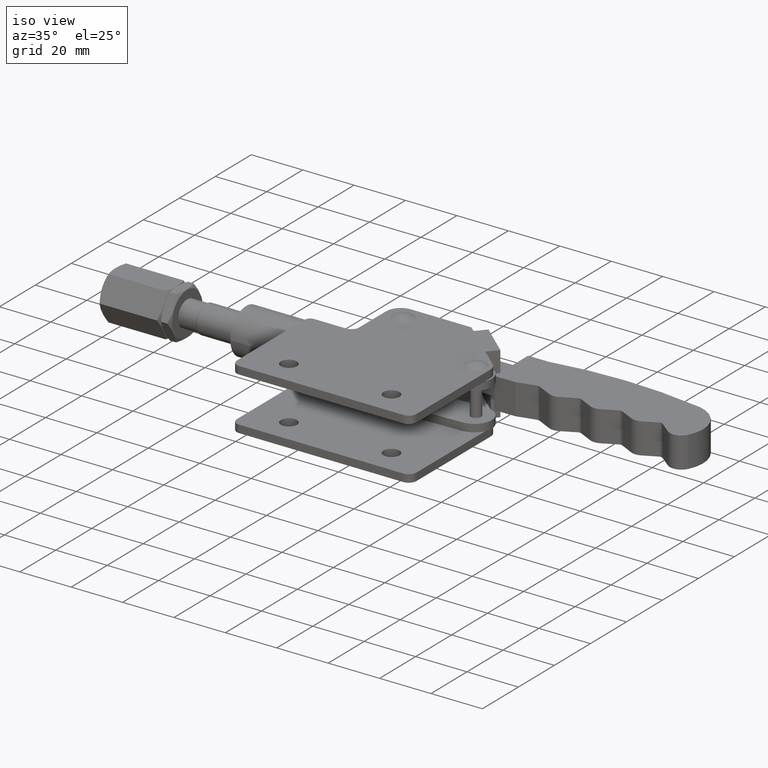
[diagram: clean part render]
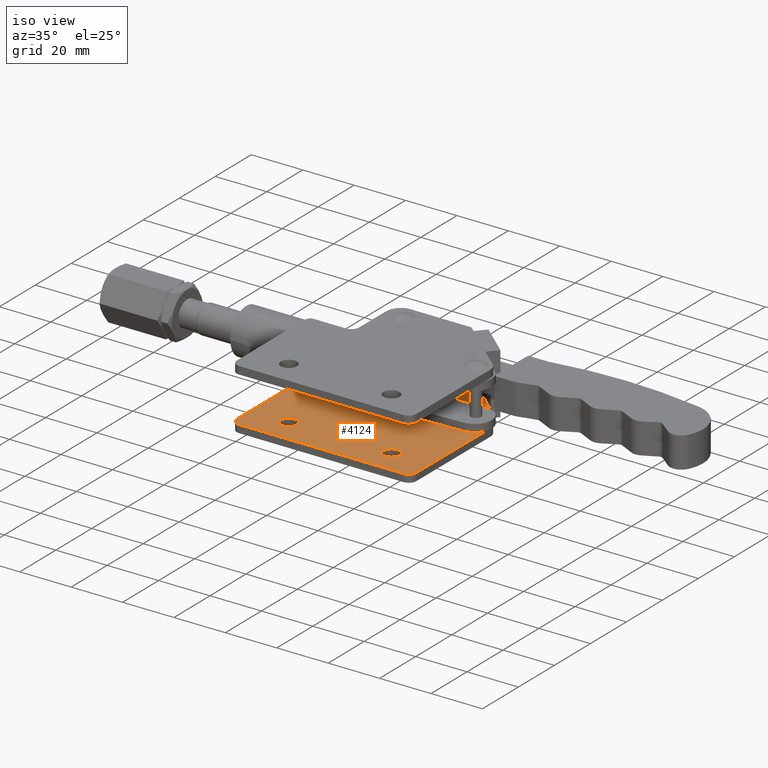
[diagram: same view with one face highlighted and labeled with its STEP entity id]
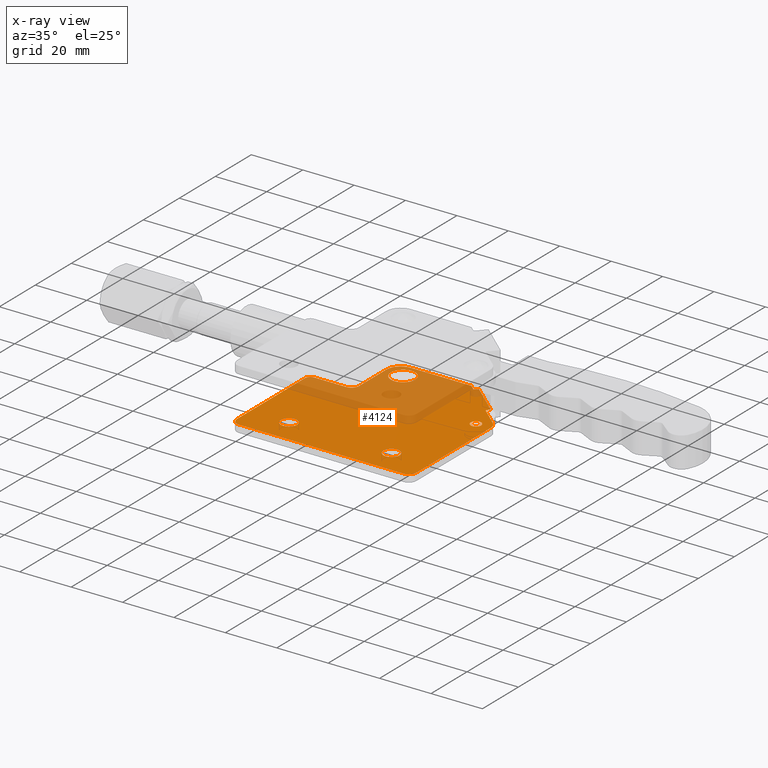
[diagram: x-ray of the same camera — body ghosted, the highlighted face saturated]
A machine part, iso view. The second image highlights one B-rep face of the part: STEP entity #4124.
The next image is the same camera in x-ray: the body ghosted, the highlighted face saturated — about 32% of this face is hidden behind the body in this view.
In plain terms, the highlighted planar face has unit normal (-0, -0, -1).
Its self-contained STEP definition (entity closure, byte-faithful):
#21 = CARTESIAN_POINT ( 'NONE',  ( 51.84999999999999400, -11.50000000000001200, -20.59999999999999400 ) ) ;
#50 = ORIENTED_EDGE ( 'NONE', *, *, #1729, .F. ) ;
#127 = CARTESIAN_POINT ( 'NONE',  ( 65.00000000000001400, 21.90075065746413000, -20.60000000000000100 ) ) ;
#140 = VERTEX_POINT ( 'NONE', #1591 ) ;
#147 = ORIENTED_EDGE ( 'NONE', *, *, #6538, .T. ) ;
#149 = CARTESIAN_POINT ( 'NONE',  ( 22.99999999999999300, 44.49999999999999300, -20.60000000000000100 ) ) ;
#206 = ORIENTED_EDGE ( 'NONE', *, *, #1552, .F. ) ;
#239 = VERTEX_POINT ( 'NONE', #1182 ) ;
#311 = AXIS2_PLACEMENT_3D ( 'NONE', #3776, #6718, #3019 ) ;
#325 = ORIENTED_EDGE ( 'NONE', *, *, #2093, .T. ) ;
#329 = VERTEX_POINT ( 'NONE', #7677 ) ;
#334 = EDGE_CURVE ( 'NONE', #1804, #3253, #7029, .T. ) ;
#335 = EDGE_CURVE ( 'NONE', #4660, #5764, #2741, .T. ) ;
#376 = DIRECTION ( 'NONE',  ( 1.000000000000000000, 0.0000000000000000000, 0.0000000000000000000 ) ) ;
#396 = DIRECTION ( 'NONE',  ( 9.227252531791530300E-017, -1.000000000000000000, 1.110223024625156200E-016 ) ) ;
#398 = DIRECTION ( 'NONE',  ( -0.0000000000000000000, 1.110223024625156000E-016, 1.000000000000000000 ) ) ;
#432 = VECTOR ( 'NONE', #793, 1000.000000000000000 ) ;
#451 = CARTESIAN_POINT ( 'NONE',  ( 62.05773196407486800, 33.41870890161623500, -20.60000000000000100 ) ) ;
#475 = DIRECTION ( 'NONE',  ( -0.0000000000000000000, 1.110223024625156000E-016, 1.000000000000000000 ) ) ;
#548 = ORIENTED_EDGE ( 'NONE', *, *, #7209, .T. ) ;
#629 = AXIS2_PLACEMENT_3D ( 'NONE', #6085, #630, #4109 ) ;
#630 = DIRECTION ( 'NONE',  ( 0.0000000000000000000, -1.110223024625156000E-016, -1.000000000000000000 ) ) ;
#669 = AXIS2_PLACEMENT_3D ( 'NONE', #3328, #2948, #5654 ) ;
#697 = AXIS2_PLACEMENT_3D ( 'NONE', #2839, #1976, #1230 ) ;
#739 = DIRECTION ( 'NONE',  ( 0.0000000000000000000, 1.000000000000000000, 0.0000000000000000000 ) ) ;
#766 = DIRECTION ( 'NONE',  ( 1.000000000000000000, 0.0000000000000000000, 0.0000000000000000000 ) ) ;
#785 = DIRECTION ( 'NONE',  ( 0.0000000000000000000, -1.110223024625156000E-016, -1.000000000000000000 ) ) ;
#793 = DIRECTION ( 'NONE',  ( -0.7535633923016373800, 0.6573752457940963400, -7.298331336992269900E-017 ) ) ;
#808 = CARTESIAN_POINT ( 'NONE',  ( 70.00000000000002800, 21.90075065746412300, -20.60000000000000100 ) ) ;
#827 = VECTOR ( 'NONE', #4089, 1000.000000000000000 ) ;
#845 = AXIS2_PLACEMENT_3D ( 'NONE', #5359, #5256, #7810 ) ;
#881 = VERTEX_POINT ( 'NONE', #451 ) ;
#933 = CARTESIAN_POINT ( 'NONE',  ( 14.99999999999999600, -11.50000000000001100, -20.59999999999999400 ) ) ;
#938 = CIRCLE ( 'NONE', #3466, 2.000000000000001800 ) ;
#946 = DIRECTION ( 'NONE',  ( 0.6563266565067466000, 0.7544768518375332100, -8.376375724567318500E-017 ) ) ;
#952 = VECTOR ( 'NONE', #2829, 1000.000000000000000 ) ;
#957 = VECTOR ( 'NONE', #4771, 1000.000000000000000 ) ;
#995 = ORIENTED_EDGE ( 'NONE', *, *, #3375, .T. ) ;
#1031 = CIRCLE ( 'NONE', #629, 3.149999999999998100 ) ;
#1036 = CARTESIAN_POINT ( 'NONE',  ( 22.99999999999999300, 44.49999999999999300, -20.60000000000000100 ) ) ;
#1105 = VERTEX_POINT ( 'NONE', #1317 ) ;
#1155 = ORIENTED_EDGE ( 'NONE', *, *, #1370, .T. ) ;
#1182 = CARTESIAN_POINT ( 'NONE',  ( 11.84999999999999600, -11.50000000000001100, -20.59999999999999400 ) ) ;
#1230 = DIRECTION ( 'NONE',  ( 1.000000000000000000, 0.0000000000000000000, 0.0000000000000000000 ) ) ;
#1317 = CARTESIAN_POINT ( 'NONE',  ( 18.14999999999999500, -11.50000000000001100, -20.59999999999999400 ) ) ;
#1352 = VERTEX_POINT ( 'NONE', #7855 ) ;
#1363 = AXIS2_PLACEMENT_3D ( 'NONE', #2137, #7042, #6399 ) ;
#1370 = EDGE_CURVE ( 'NONE', #5854, #1510, #7167, .T. ) ;
#1455 = VERTEX_POINT ( 'NONE', #3716 ) ;
#1497 = VECTOR ( 'NONE', #3975, 1000.000000000000100 ) ;
#1510 = VERTEX_POINT ( 'NONE', #1869 ) ;
#1530 = AXIS2_PLACEMENT_3D ( 'NONE', #5467, #7174, #766 ) ;
#1552 = EDGE_CURVE ( 'NONE', #1773, #2255, #2884, .T. ) ;
#1591 = CARTESIAN_POINT ( 'NONE',  ( 70.00000000000001400, 21.90075065746411900, -20.60000000000000100 ) ) ;
#1600 = CARTESIAN_POINT ( 'NONE',  ( 17.49999999999998900, 23.80000000000000100, -20.60000000000000100 ) ) ;
#1642 = VERTEX_POINT ( 'NONE', #4127 ) ;
#1708 = EDGE_CURVE ( 'NONE', #3002, #1352, #5382, .T. ) ;
#1712 = AXIS2_PLACEMENT_3D ( 'NONE', #7714, #785, #3318 ) ;
#1722 = ORIENTED_EDGE ( 'NONE', *, *, #7622, .T. ) ;
#1729 = EDGE_CURVE ( 'NONE', #329, #881, #3259, .T. ) ;
#1773 = VERTEX_POINT ( 'NONE', #5936 ) ;
#1804 = VERTEX_POINT ( 'NONE', #1600 ) ;
#1861 = ORIENTED_EDGE ( 'NONE', *, *, #2289, .T. ) ;
#1869 = CARTESIAN_POINT ( 'NONE',  ( 58.14999999999999100, -11.50000000000001200, -20.59999999999999400 ) ) ;
#1913 = LINE ( 'NONE', #5606, #952 ) ;
#1959 = DIRECTION ( 'NONE',  ( -0.0000000000000000000, 1.110223024625156000E-016, 1.000000000000000000 ) ) ;
#1976 = DIRECTION ( 'NONE',  ( 0.0000000000000000000, -1.110223024625156000E-016, -1.000000000000000000 ) ) ;
#2005 = LINE ( 'NONE', #7287, #957 ) ;
#2008 = CARTESIAN_POINT ( 'NONE',  ( 61.28844937279576000, 31.77368448339173300, -20.60000000000000100 ) ) ;
#2029 = VERTEX_POINT ( 'NONE', #4955 ) ;
#2038 = CARTESIAN_POINT ( 'NONE',  ( 61.28844937279576000, 31.77368448339173300, -20.60000000000000100 ) ) ;
#2065 = FACE_OUTER_BOUND ( 'NONE', #5744, .T. ) ;
#2070 = VECTOR ( 'NONE', #3468, 1000.000000000000000 ) ;
#2083 = CARTESIAN_POINT ( 'NONE',  ( 3.000000000000002700, -22.00000000000001100, -20.59999999999999400 ) ) ;
#2093 = EDGE_CURVE ( 'NONE', #1352, #881, #7856, .T. ) ;
#2137 = CARTESIAN_POINT ( 'NONE',  ( 22.99999999999999300, 38.99999999999998600, -20.60000000000000100 ) ) ;
#2214 = VERTEX_POINT ( 'NONE', #6562 ) ;
#2222 = EDGE_CURVE ( 'NONE', #1642, #4660, #5662, .T. ) ;
#2240 = CIRCLE ( 'NONE', #6245, 3.149999999999999900 ) ;
#2255 = VERTEX_POINT ( 'NONE', #5713 ) ;
#2289 = EDGE_CURVE ( 'NONE', #140, #7817, #4452, .T. ) ;
#2323 = EDGE_LOOP ( 'NONE', ( #5060, #3372 ) ) ;
#2427 = DIRECTION ( 'NONE',  ( 0.0000000000000000000, -1.110223024625156000E-016, -1.000000000000000000 ) ) ;
#2561 = AXIS2_PLACEMENT_3D ( 'NONE', #933, #2902, #5917 ) ;
#2571 = CARTESIAN_POINT ( 'NONE',  ( 2.000000000000000000, 20.80000000000000100, -20.59999999999999800 ) ) ;
#2741 = LINE ( 'NONE', #1036, #5595 ) ;
#2783 = ORIENTED_EDGE ( 'NONE', *, *, #335, .T. ) ;
#2816 = EDGE_CURVE ( 'NONE', #3253, #5177, #1913, .T. ) ;
#2829 = DIRECTION ( 'NONE',  ( -1.000000000000000000, 0.0000000000000000000, 0.0000000000000000000 ) ) ;
#2839 = CARTESIAN_POINT ( 'NONE',  ( 14.49999999999998800, 23.80000000000000100, -20.60000000000000100 ) ) ;
#2841 = CIRCLE ( 'NONE', #845, 4.750000000000032000 ) ;
#2884 = CIRCLE ( 'NONE', #7682, 4.750000000000032000 ) ;
#2902 = DIRECTION ( 'NONE',  ( 0.0000000000000000000, -1.110223024625156000E-016, -1.000000000000000000 ) ) ;
#2948 = DIRECTION ( 'NONE',  ( 0.0000000000000000000, 0.0000000000000000000, 1.000000000000000000 ) ) ;
#2958 = VECTOR ( 'NONE', #396, 1000.000000000000000 ) ;
#2975 = CARTESIAN_POINT ( 'NONE',  ( 64.39634752937097100, 21.89999999999998400, -20.59999999999999800 ) ) ;
#3002 = VERTEX_POINT ( 'NONE', #2008 ) ;
#3019 = DIRECTION ( 'NONE',  ( 1.000000000000000000, 0.0000000000000000000, 0.0000000000000000000 ) ) ;
#3048 = CARTESIAN_POINT ( 'NONE',  ( 17.49999999999998900, 38.99999999999998600, -20.60000000000000100 ) ) ;
#3101 = ORIENTED_EDGE ( 'NONE', *, *, #2816, .T. ) ;
#3168 = ORIENTED_EDGE ( 'NONE', *, *, #7820, .T. ) ;
#3175 = DIRECTION ( 'NONE',  ( 0.0000000000000000000, 0.0000000000000000000, 1.000000000000000000 ) ) ;
#3190 = LINE ( 'NONE', #808, #827 ) ;
#3240 = EDGE_CURVE ( 'NONE', #239, #1105, #6817, .T. ) ;
#3253 = VERTEX_POINT ( 'NONE', #4251 ) ;
#3256 = CARTESIAN_POINT ( 'NONE',  ( 68.28687622897049900, 25.66856761897230400, -20.60000000000000100 ) ) ;
#3259 = LINE ( 'NONE', #3867, #3738 ) ;
#3311 = CARTESIAN_POINT ( 'NONE',  ( 66.99999999999998600, -22.00000000000001800, -20.59999999999999400 ) ) ;
#3312 = DIRECTION ( 'NONE',  ( 0.0000000000000000000, -1.110223024625156000E-016, -1.000000000000000000 ) ) ;
#3318 = DIRECTION ( 'NONE',  ( 0.0000000000000000000, 1.000000000000000000, 0.0000000000000000000 ) ) ;
#3328 = CARTESIAN_POINT ( 'NONE',  ( 64.39634752937097100, 21.89999999999998400, -20.59999999999999800 ) ) ;
#3333 = LINE ( 'NONE', #6613, #2958 ) ;
#3370 = DIRECTION ( 'NONE',  ( 0.7535633923016399300, -0.6573752457940934500, 7.298331336992237800E-017 ) ) ;
#3372 = ORIENTED_EDGE ( 'NONE', *, *, #5683, .F. ) ;
#3375 = EDGE_CURVE ( 'NONE', #1105, #239, #2240, .T. ) ;
#3466 = AXIS2_PLACEMENT_3D ( 'NONE', #2975, #3175, #6815 ) ;
#3468 = DIRECTION ( 'NONE',  ( 0.0000000000000000000, -1.000000000000000000, 1.110223024625156000E-016 ) ) ;
#3473 = CIRCLE ( 'NONE', #5704, 2.999999999999997300 ) ;
#3490 = FACE_BOUND ( 'NONE', #2323, .T. ) ;
#3510 = ORIENTED_EDGE ( 'NONE', *, *, #1708, .T. ) ;
#3521 = FACE_BOUND ( 'NONE', #6035, .T. ) ;
#3676 = CARTESIAN_POINT ( 'NONE',  ( 46.69999999999998900, 44.50000000000000000, -20.60000000000000100 ) ) ;
#3708 = FACE_BOUND ( 'NONE', #5396, .T. ) ;
#3716 = CARTESIAN_POINT ( 'NONE',  ( 17.49999999999998900, 38.99999999999998600, -20.60000000000000100 ) ) ;
#3738 = VECTOR ( 'NONE', #3370, 1000.000000000000100 ) ;
#3762 = DIRECTION ( 'NONE',  ( -1.000000000000000000, -2.927803334981952900E-016, 3.250514674071282500E-032 ) ) ;
#3776 = CARTESIAN_POINT ( 'NONE',  ( 66.99999999999998600, -19.00000000000001400, -20.59999999999999400 ) ) ;
#3814 = CARTESIAN_POINT ( 'NONE',  ( 14.99999999999999600, -11.50000000000001100, -20.59999999999999400 ) ) ;
#3867 = CARTESIAN_POINT ( 'NONE',  ( 49.62522958480004600, 44.26427198350752700, -20.60000000000000100 ) ) ;
#3975 = DIRECTION ( 'NONE',  ( -0.7535633923016400400, 0.6573752457940932300, -7.298331336992235300E-017 ) ) ;
#3976 = CARTESIAN_POINT ( 'NONE',  ( 66.39634752937097100, 21.89999999999998400, -20.59999999999999800 ) ) ;
#4028 = VERTEX_POINT ( 'NONE', #6256 ) ;
#4089 = DIRECTION ( 'NONE',  ( 1.901001663121262300E-015, 1.000000000000000000, -1.110223024625156200E-016 ) ) ;
#4109 = DIRECTION ( 'NONE',  ( 0.0000000000000000000, 1.000000000000000000, 0.0000000000000000000 ) ) ;
#4124 = ADVANCED_FACE ( 'NONE', ( #3521, #3708, #5143, #2065, #3490 ), #5526, .F. ) ;
#4127 = CARTESIAN_POINT ( 'NONE',  ( 48.46049205446850300, 42.96422489620947300, -20.60000000000000100 ) ) ;
#4135 = CARTESIAN_POINT ( 'NONE',  ( 2.000000000000000000, 18.79999999999999700, -20.59999999999999800 ) ) ;
#4175 = AXIS2_PLACEMENT_3D ( 'NONE', #5127, #6241, #6397 ) ;
#4243 = VERTEX_POINT ( 'NONE', #3976 ) ;
#4251 = CARTESIAN_POINT ( 'NONE',  ( 14.49999999999998800, 20.80000000000000100, -20.59999999999999800 ) ) ;
#4287 = EDGE_CURVE ( 'NONE', #2255, #1773, #2841, .T. ) ;
#4401 = ORIENTED_EDGE ( 'NONE', *, *, #4581, .T. ) ;
#4409 = AXIS2_PLACEMENT_3D ( 'NONE', #127, #1959, #5601 ) ;
#4452 = CIRCLE ( 'NONE', #4409, 5.000000000000004400 ) ;
#4456 = ORIENTED_EDGE ( 'NONE', *, *, #6852, .T. ) ;
#4581 = EDGE_CURVE ( 'NONE', #329, #5176, #2005, .T. ) ;
#4660 = VERTEX_POINT ( 'NONE', #7683 ) ;
#4664 = DIRECTION ( 'NONE',  ( 1.000000000000000000, -1.084202172485504700E-016, 1.203706215242022100E-032 ) ) ;
#4712 = CARTESIAN_POINT ( 'NONE',  ( 48.80622502360355200, 43.32542942836960300, -20.60000000000000100 ) ) ;
#4771 = DIRECTION ( 'NONE',  ( -0.6563266565067464900, -0.7544768518375332100, 8.376375724567318500E-017 ) ) ;
#4786 = CARTESIAN_POINT ( 'NONE',  ( 62.39634752937097800, 21.89999999999998400, -20.59999999999999800 ) ) ;
#4955 = CARTESIAN_POINT ( 'NONE',  ( 69.99999999999998600, -19.00000000000001400, -20.59999999999999400 ) ) ;
#4979 = CARTESIAN_POINT ( 'NONE',  ( 24.63999999999999300, 37.99999999999998600, -20.60000000000000100 ) ) ;
#5060 = ORIENTED_EDGE ( 'NONE', *, *, #6554, .F. ) ;
#5127 = CARTESIAN_POINT ( 'NONE',  ( 61.61716502681409900, 32.15044172460058300, -20.60000000000000100 ) ) ;
#5130 = ORIENTED_EDGE ( 'NONE', *, *, #4287, .F. ) ;
#5143 = FACE_BOUND ( 'NONE', #5199, .T. ) ;
#5176 = VERTEX_POINT ( 'NONE', #7319 ) ;
#5177 = VERTEX_POINT ( 'NONE', #2571 ) ;
#5199 = EDGE_LOOP ( 'NONE', ( #995, #6988 ) ) ;
#5256 = DIRECTION ( 'NONE',  ( -0.0000000000000000000, 1.110223024625156000E-016, 1.000000000000000000 ) ) ;
#5359 = CARTESIAN_POINT ( 'NONE',  ( 24.63999999999999300, 37.99999999999998600, -20.60000000000000100 ) ) ;
#5382 = CIRCLE ( 'NONE', #4175, 0.5000000000000143200 ) ;
#5396 = EDGE_LOOP ( 'NONE', ( #4456, #1155 ) ) ;
#5430 = EDGE_CURVE ( 'NONE', #7817, #3002, #7422, .T. ) ;
#5467 = CARTESIAN_POINT ( 'NONE',  ( 48.80622502360355200, 43.32542942836960300, -20.60000000000000100 ) ) ;
#5503 = DIRECTION ( 'NONE',  ( -0.0000000000000000000, 1.110223024625156000E-016, 1.000000000000000000 ) ) ;
#5526 = PLANE ( 'NONE',  #1530 ) ;
#5529 = LINE ( 'NONE', #2083, #6740 ) ;
#5543 = ORIENTED_EDGE ( 'NONE', *, *, #6705, .T. ) ;
#5575 = EDGE_CURVE ( 'NONE', #2029, #140, #3190, .T. ) ;
#5595 = VECTOR ( 'NONE', #3762, 1000.000000000000000 ) ;
#5601 = DIRECTION ( 'NONE',  ( 1.000000000000000000, 0.0000000000000000000, 0.0000000000000000000 ) ) ;
#5606 = CARTESIAN_POINT ( 'NONE',  ( 2.000000000000000000, 20.80000000000000100, -20.59999999999999800 ) ) ;
#5654 = DIRECTION ( 'NONE',  ( 1.000000000000000000, 0.0000000000000000000, 0.0000000000000000000 ) ) ;
#5662 = LINE ( 'NONE', #3676, #432 ) ;
#5683 = EDGE_CURVE ( 'NONE', #4243, #7178, #938, .T. ) ;
#5704 = AXIS2_PLACEMENT_3D ( 'NONE', #7360, #398, #7059 ) ;
#5713 = CARTESIAN_POINT ( 'NONE',  ( 29.38882554625753200, 38.10562164177891700, -20.60000000000000100 ) ) ;
#5720 = CIRCLE ( 'NONE', #311, 3.000000000000002700 ) ;
#5741 = ORIENTED_EDGE ( 'NONE', *, *, #5430, .T. ) ;
#5744 = EDGE_LOOP ( 'NONE', ( #6896, #1861, #5741, #3510, #325, #50, #4401, #3168, #6646, #2783, #1722, #5958, #7264, #3101, #147, #548, #7720, #5543, #6647 ) ) ;
#5764 = VERTEX_POINT ( 'NONE', #149 ) ;
#5854 = VERTEX_POINT ( 'NONE', #21 ) ;
#5883 = AXIS2_PLACEMENT_3D ( 'NONE', #4712, #2427, #7252 ) ;
#5916 = CIRCLE ( 'NONE', #1363, 5.500000000000005300 ) ;
#5917 = DIRECTION ( 'NONE',  ( 0.0000000000000000000, 1.000000000000000000, 0.0000000000000000000 ) ) ;
#5936 = CARTESIAN_POINT ( 'NONE',  ( 19.89117445374245100, 37.89437835822105400, -20.60000000000000100 ) ) ;
#5958 = ORIENTED_EDGE ( 'NONE', *, *, #6412, .T. ) ;
#6035 = EDGE_LOOP ( 'NONE', ( #206, #5130 ) ) ;
#6085 = CARTESIAN_POINT ( 'NONE',  ( 54.99999999999999300, -11.50000000000001200, -20.59999999999999400 ) ) ;
#6166 = CIRCLE ( 'NONE', #669, 2.000000000000001800 ) ;
#6241 = DIRECTION ( 'NONE',  ( 0.0000000000000000000, -1.110223024625156000E-016, -1.000000000000000000 ) ) ;
#6245 = AXIS2_PLACEMENT_3D ( 'NONE', #3814, #3312, #6622 ) ;
#6256 = CARTESIAN_POINT ( 'NONE',  ( -1.734723475976807100E-015, 18.79999999999999700, -20.59999999999999800 ) ) ;
#6375 = CARTESIAN_POINT ( 'NONE',  ( 61.23992695308214000, 32.47860545770803500, -20.60000000000000100 ) ) ;
#6397 = DIRECTION ( 'NONE',  ( 1.000000000000000000, 0.0000000000000000000, 0.0000000000000000000 ) ) ;
#6399 = DIRECTION ( 'NONE',  ( 1.000000000000000000, 0.0000000000000000000, 0.0000000000000000000 ) ) ;
#6412 = EDGE_CURVE ( 'NONE', #1455, #1804, #7114, .T. ) ;
#6430 = CIRCLE ( 'NONE', #5883, 0.4999999999999588100 ) ;
#6464 = EDGE_CURVE ( 'NONE', #2214, #6614, #3473, .T. ) ;
#6538 = EDGE_CURVE ( 'NONE', #5177, #4028, #6768, .T. ) ;
#6554 = EDGE_CURVE ( 'NONE', #7178, #4243, #6166, .T. ) ;
#6562 = CARTESIAN_POINT ( 'NONE',  ( 2.553132332470925500E-015, -19.00000000000001400, -20.59999999999999400 ) ) ;
#6613 = CARTESIAN_POINT ( 'NONE',  ( -1.734723475976807100E-015, 18.79999999999999700, -20.59999999999999800 ) ) ;
#6614 = VERTEX_POINT ( 'NONE', #6841 ) ;
#6622 = DIRECTION ( 'NONE',  ( 0.0000000000000000000, 1.000000000000000000, 0.0000000000000000000 ) ) ;
#6646 = ORIENTED_EDGE ( 'NONE', *, *, #2222, .T. ) ;
#6647 = ORIENTED_EDGE ( 'NONE', *, *, #7488, .T. ) ;
#6705 = EDGE_CURVE ( 'NONE', #6614, #7471, #5529, .T. ) ;
#6718 = DIRECTION ( 'NONE',  ( -0.0000000000000000000, 1.110223024625156000E-016, 1.000000000000000000 ) ) ;
#6740 = VECTOR ( 'NONE', #4664, 1000.000000000000000 ) ;
#6768 = CIRCLE ( 'NONE', #7736, 2.000000000000001800 ) ;
#6815 = DIRECTION ( 'NONE',  ( 1.000000000000000000, 0.0000000000000000000, 0.0000000000000000000 ) ) ;
#6817 = CIRCLE ( 'NONE', #2561, 3.149999999999999900 ) ;
#6841 = CARTESIAN_POINT ( 'NONE',  ( 3.000000000000002200, -22.00000000000001400, -20.59999999999999400 ) ) ;
#6852 = EDGE_CURVE ( 'NONE', #1510, #5854, #1031, .T. ) ;
#6896 = ORIENTED_EDGE ( 'NONE', *, *, #5575, .T. ) ;
#6988 = ORIENTED_EDGE ( 'NONE', *, *, #3240, .T. ) ;
#7029 = CIRCLE ( 'NONE', #697, 3.000000000000000900 ) ;
#7042 = DIRECTION ( 'NONE',  ( -0.0000000000000000000, 1.110223024625156000E-016, 1.000000000000000000 ) ) ;
#7059 = DIRECTION ( 'NONE',  ( 1.000000000000000000, 0.0000000000000000000, 0.0000000000000000000 ) ) ;
#7114 = LINE ( 'NONE', #3048, #2070 ) ;
#7167 = CIRCLE ( 'NONE', #1712, 3.149999999999998100 ) ;
#7174 = DIRECTION ( 'NONE',  ( 0.0000000000000000000, -1.110223024625156000E-016, -1.000000000000000000 ) ) ;
#7178 = VERTEX_POINT ( 'NONE', #4786 ) ;
#7209 = EDGE_CURVE ( 'NONE', #4028, #2214, #3333, .T. ) ;
#7252 = DIRECTION ( 'NONE',  ( 1.000000000000000000, 0.0000000000000000000, 0.0000000000000000000 ) ) ;
#7264 = ORIENTED_EDGE ( 'NONE', *, *, #334, .T. ) ;
#7287 = CARTESIAN_POINT ( 'NONE',  ( 49.18348598648469000, 42.99729200915935900, -20.60000000000000100 ) ) ;
#7319 = CARTESIAN_POINT ( 'NONE',  ( 49.18348598648469000, 42.99729200915935900, -20.60000000000000100 ) ) ;
#7360 = CARTESIAN_POINT ( 'NONE',  ( 3.000000000000002700, -19.00000000000001400, -20.59999999999999400 ) ) ;
#7422 = LINE ( 'NONE', #2038, #1497 ) ;
#7471 = VERTEX_POINT ( 'NONE', #3311 ) ;
#7488 = EDGE_CURVE ( 'NONE', #7471, #2029, #5720, .T. ) ;
#7564 = VECTOR ( 'NONE', #946, 1000.000000000000000 ) ;
#7622 = EDGE_CURVE ( 'NONE', #5764, #1455, #5916, .T. ) ;
#7677 = CARTESIAN_POINT ( 'NONE',  ( 50.00070602841909600, 43.93672300496696400, -20.60000000000000100 ) ) ;
#7682 = AXIS2_PLACEMENT_3D ( 'NONE', #4979, #5503, #739 ) ;
#7683 = CARTESIAN_POINT ( 'NONE',  ( 46.69999999999998900, 44.50000000000000000, -20.60000000000000100 ) ) ;
#7714 = CARTESIAN_POINT ( 'NONE',  ( 54.99999999999999300, -11.50000000000001200, -20.59999999999999400 ) ) ;
#7720 = ORIENTED_EDGE ( 'NONE', *, *, #6464, .T. ) ;
#7736 = AXIS2_PLACEMENT_3D ( 'NONE', #4135, #475, #376 ) ;
#7810 = DIRECTION ( 'NONE',  ( 0.0000000000000000000, 1.000000000000000000, 0.0000000000000000000 ) ) ;
#7817 = VERTEX_POINT ( 'NONE', #3256 ) ;
#7820 = EDGE_CURVE ( 'NONE', #5176, #1642, #6430, .T. ) ;
#7855 = CARTESIAN_POINT ( 'NONE',  ( 61.23992695308214000, 32.47860545770803500, -20.60000000000000100 ) ) ;
#7856 = LINE ( 'NONE', #6375, #7564 ) ;